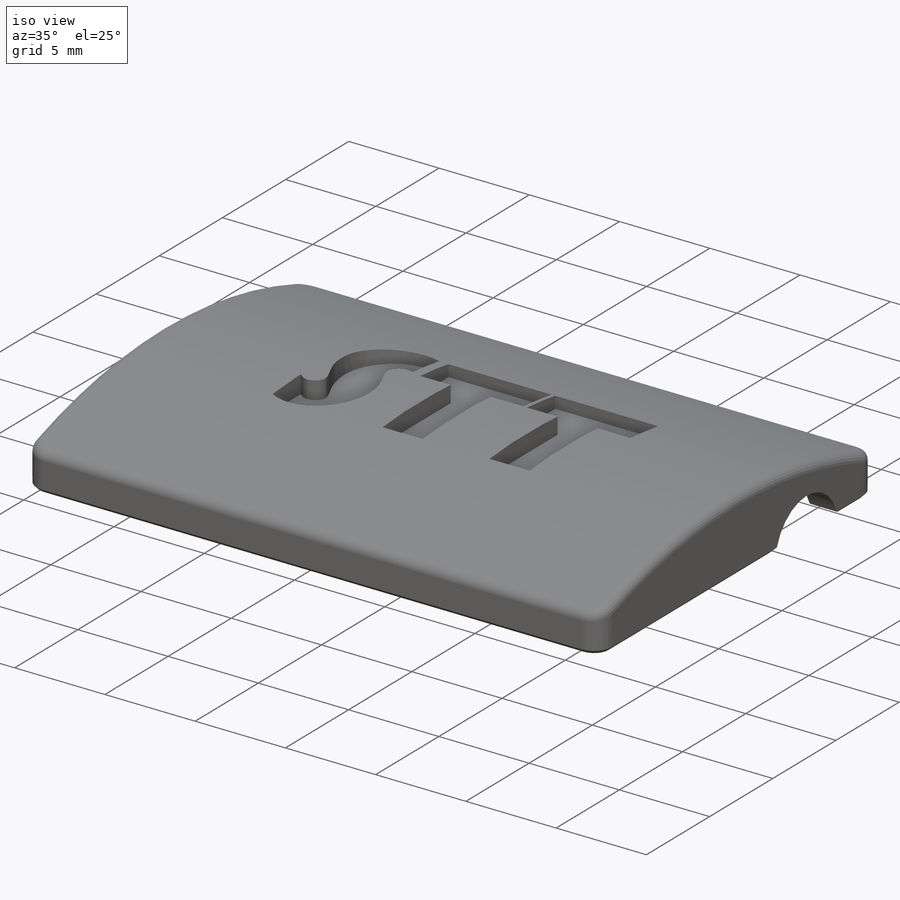
[diagram: iso view]
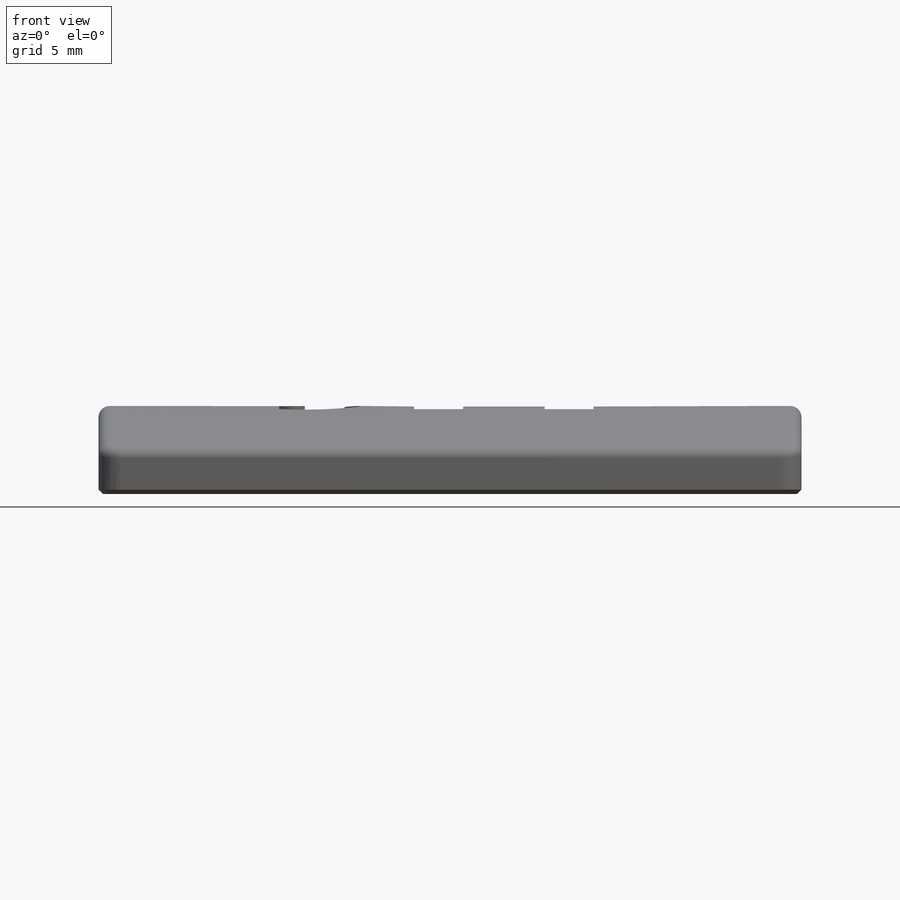
[diagram: front view]
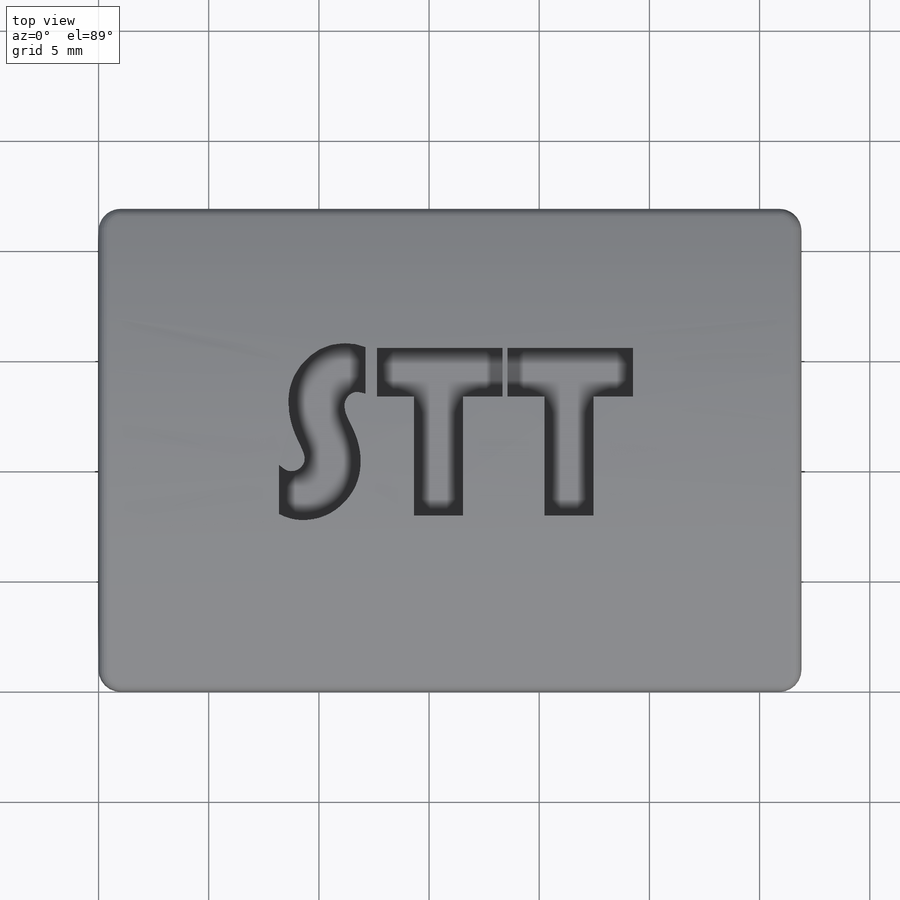
[diagram: top view]
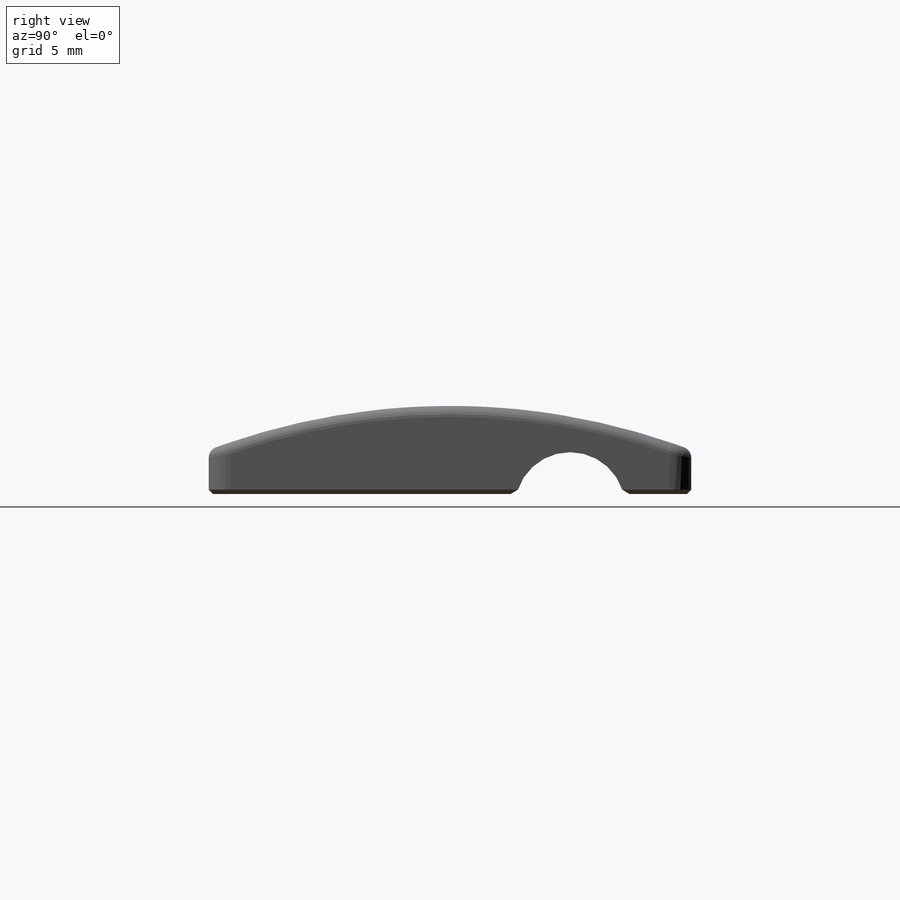
[diagram: right view]
SOLIDWORKS PART (.sldprt)
format: sldprt  version: not decoded by parser v0  size: 507,904 bytes
history: native  units: mm
features: sketch x5, cut_extrude x3, extrude x2, fillet x2, material x1, chamfer x1 (+13 scaffold rows collapsed)
feature tree (27):
  scaffold x13  (default folders/planes/origin — collapsed)
  material  "Material <not specified>"
  sketch  "Sketch1"  dims[D1=21.9mm D2=31.9mm]
  extrude  "Boss-Extrude1"  Depth=2mm
  fillet  "Fillet1"  Radius=1mm
  sketch  "Sketch2"
  cut_extrude  "Cut-Extrude1"  Depth=1mm flange_len_value=0 Associativity_IDs=0mm
  sketch  "Sketch3"  dims[D1=1.5mm]
  extrude  "Boss-Extrude2"  Depth=2mm
  sketch  "Sketch4"  dims[D1=31.0mm]
  cut_extrude  "Cut-Extrude2"  Depth=0mm Associativity_IDs=0mm flange_len_value=0
  sketch  "Sketch5"  dims[D1=2.5mm D2=3.0mm D3=2.0mm D4=1.4mm]
  cut_extrude  "Cut-Extrude3"  Depth=0mm Associativity_IDs=0mm flange_len_value=0
  fillet  "Fillet2"  Radius=0.5mm
  chamfer  "Chamfer1"  Distance=0.2mm Angle=45deg Associativity_IDs=0mm flange_len_value=0
decode coverage: 12 of 13 modeling features carry decoded parameters
note: suppression state not decoded; provenance and decode notes live in map.json
